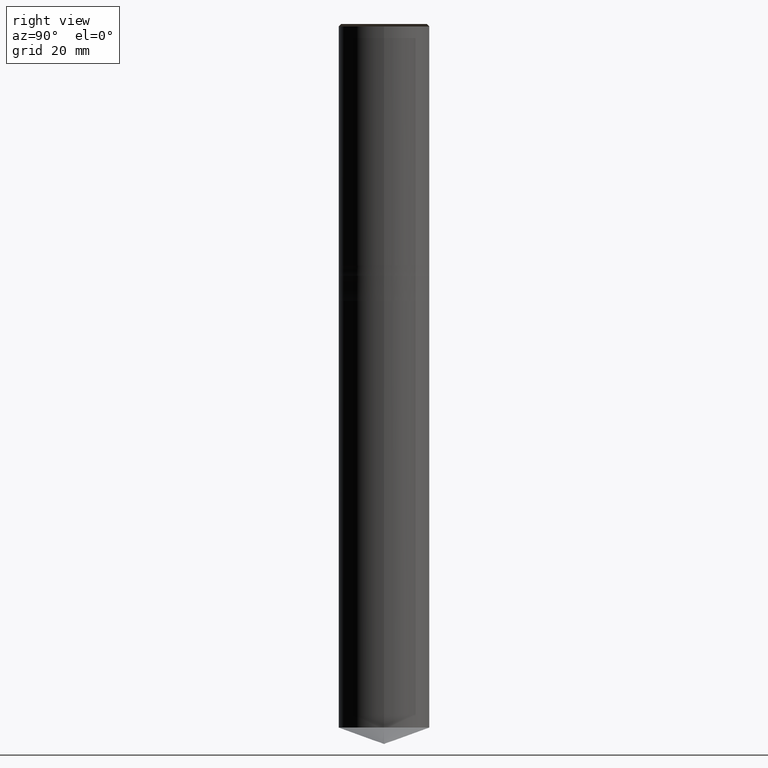
[diagram: clean part render]
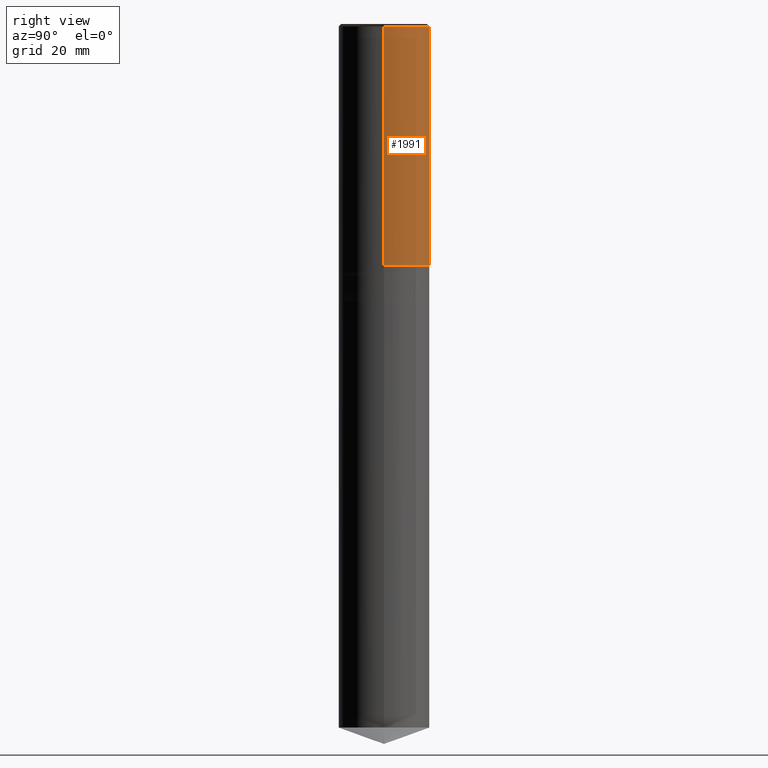
[diagram: same view with one face highlighted and labeled with its STEP entity id]
A machine part, right view. The second image highlights one B-rep face of the part: STEP entity #1991.
In plain terms, the highlighted face is a freeform B-spline surface patch.
Its self-contained STEP definition (entity closure, byte-faithful):
#1775=CARTESIAN_POINT('',(9.0,0.0,0.0));
#1776=CARTESIAN_POINT('',(9.0,9.0,0.0));
#1777=CARTESIAN_POINT('',(0.0,9.0,0.0));
#1778=CARTESIAN_POINT('',(-9.0,9.0,0.0));
#1779=CARTESIAN_POINT('',(-9.0,0.0,0.0));
#1780=CARTESIAN_POINT('',(9.0,0.0,47.5));
#1781=CARTESIAN_POINT('',(9.0,9.0,47.5));
#1782=CARTESIAN_POINT('',(0.0,9.0,47.5));
#1783=CARTESIAN_POINT('',(-9.0,9.0,47.5));
#1784=CARTESIAN_POINT('',(-9.0,0.0,47.5));
#1972=(
BOUNDED_SURFACE()
B_SPLINE_SURFACE(1,2,(
(#1775,#1776,#1777,#1778,#1779),
(#1780,#1781,#1782,#1783,#1784)
), .UNSPECIFIED.,.F.,.F.,.F.)
B_SPLINE_SURFACE_WITH_KNOTS((2,2),(3,2,3),(
0.0,1.0),(
0.0,0.5,1.0), .UNSPECIFIED.)
GEOMETRIC_REPRESENTATION_ITEM()
RATIONAL_B_SPLINE_SURFACE(((1.0,0.707106781187,1.0,0.707106781187,1.0),
(1.0,0.707106781187,1.0,0.707106781187,1.0)
))
REPRESENTATION_ITEM('')
SURFACE()
);
#1973=(
BOUNDED_CURVE()
B_SPLINE_CURVE(2,(#1779,#1778,#1777,#1776,#1775),.UNSPECIFIED.,.F.,.F.)
B_SPLINE_CURVE_WITH_KNOTS((3,2,3),
(0.0,0.5,1.0),.UNSPECIFIED.)
CURVE()
GEOMETRIC_REPRESENTATION_ITEM()
RATIONAL_B_SPLINE_CURVE((1.0,0.707106781187,1.0,0.707106781187,1.0))
REPRESENTATION_ITEM('')
);
#1974=(
BOUNDED_CURVE()
B_SPLINE_CURVE(1,(#1775,#1780),.UNSPECIFIED.,.F.,.F.)
B_SPLINE_CURVE_WITH_KNOTS((2,2),
(0.0,1.0),.UNSPECIFIED.)
CURVE()
GEOMETRIC_REPRESENTATION_ITEM()
RATIONAL_B_SPLINE_CURVE((1.0,1.0))
REPRESENTATION_ITEM('')
);
#1975=(
BOUNDED_CURVE()
B_SPLINE_CURVE(2,(#1780,#1781,#1782,#1783,#1784),.UNSPECIFIED.,.F.,.F.)
B_SPLINE_CURVE_WITH_KNOTS((3,2,3),
(0.0,0.5,1.0),.UNSPECIFIED.)
CURVE()
GEOMETRIC_REPRESENTATION_ITEM()
RATIONAL_B_SPLINE_CURVE((1.0,0.707106781187,1.0,0.707106781187,1.0))
REPRESENTATION_ITEM('')
);
#1976=(
BOUNDED_CURVE()
B_SPLINE_CURVE(1,(#1784,#1779),.UNSPECIFIED.,.F.,.F.)
B_SPLINE_CURVE_WITH_KNOTS((2,2),
(0.0,1.0),.UNSPECIFIED.)
CURVE()
GEOMETRIC_REPRESENTATION_ITEM()
RATIONAL_B_SPLINE_CURVE((1.0,1.0))
REPRESENTATION_ITEM('')
);
#1977=VERTEX_POINT('',#1775);
#1978=VERTEX_POINT('',#1779);
#1979=VERTEX_POINT('',#1780);
#1980=VERTEX_POINT('',#1784);
#1981=EDGE_CURVE('',#1978,#1977,#1973,.T.);
#1982=EDGE_CURVE('',#1977,#1979,#1974,.T.);
#1983=EDGE_CURVE('',#1979,#1980,#1975,.T.);
#1984=EDGE_CURVE('',#1980,#1978,#1976,.T.);
#1985=ORIENTED_EDGE('',*,*,#1981,.T.);
#1986=ORIENTED_EDGE('',*,*,#1982,.T.);
#1987=ORIENTED_EDGE('',*,*,#1983,.T.);
#1988=ORIENTED_EDGE('',*,*,#1984,.T.);
#1989=EDGE_LOOP('',(#1985,#1986,#1987,#1988));
#1990=FACE_OUTER_BOUND('',#1989,.T.);
#1991=ADVANCED_FACE('',(#1990),#1972,.T.);